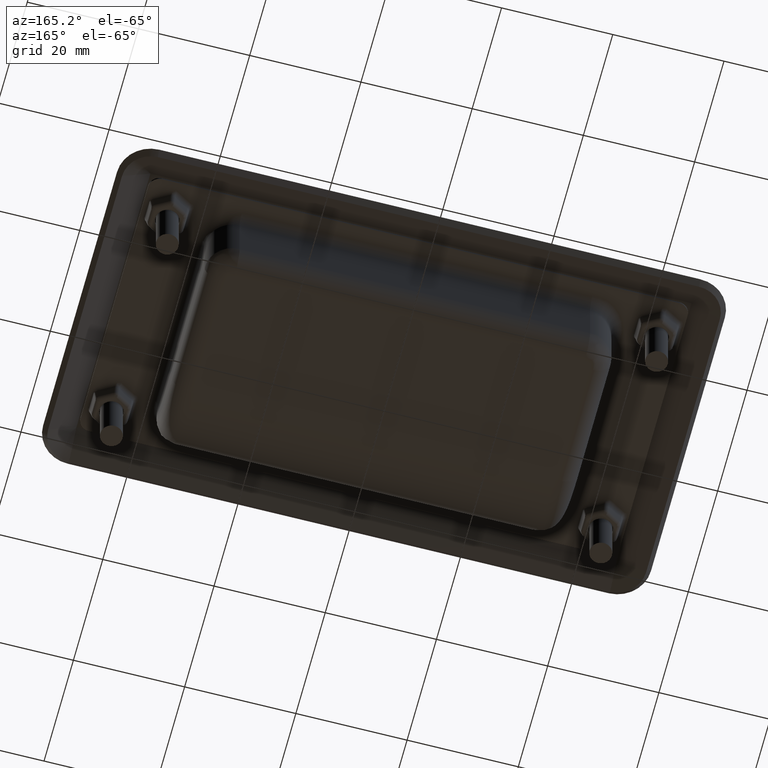
[diagram: clean part render]
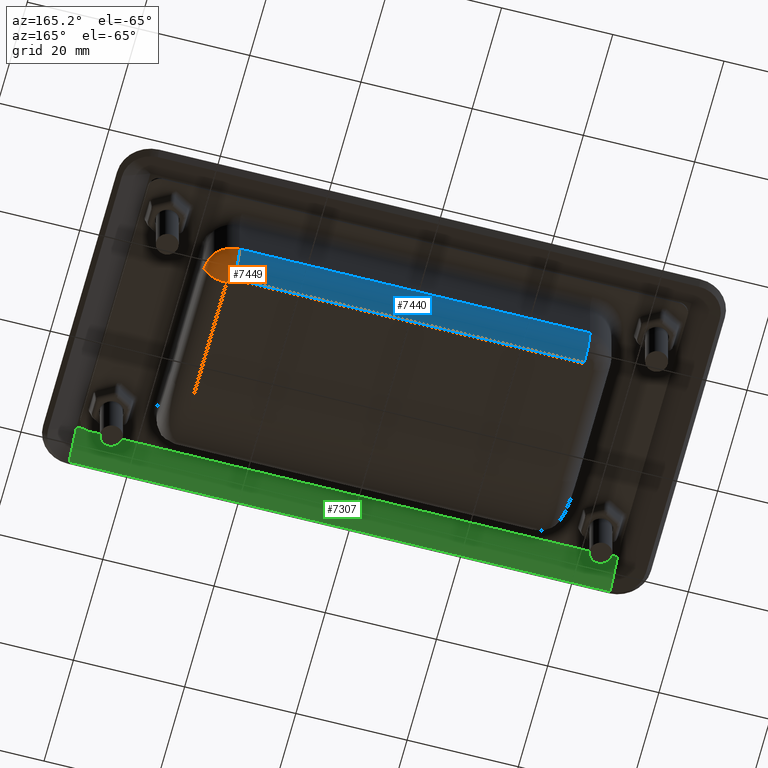
[diagram: same view with three faces highlighted in distinct colors, each labeled with its STEP entity id]
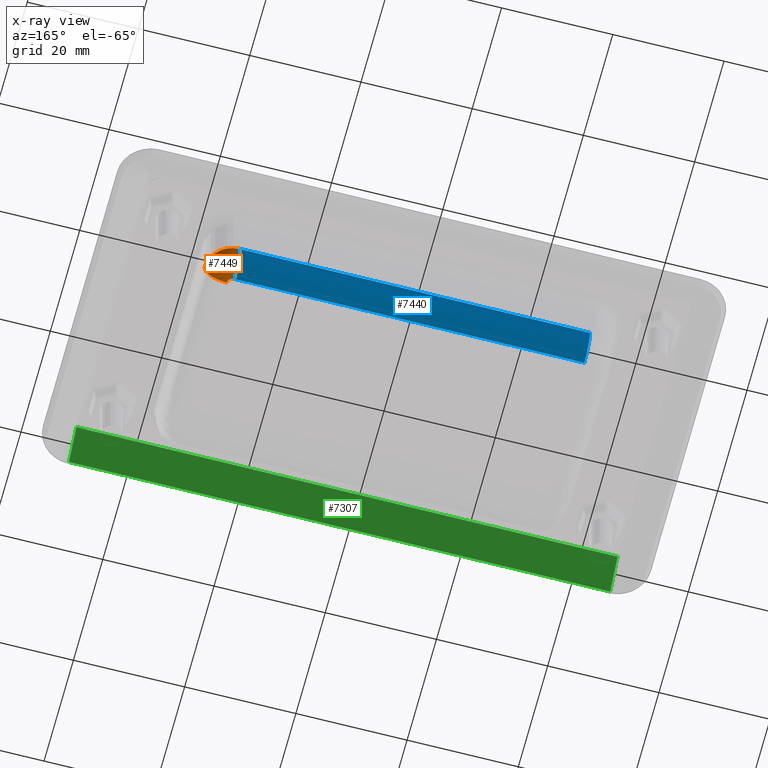
[diagram: x-ray of the same camera — body ghosted, the three highlighted faces saturated]
A machine part, auxiliary view with three faces highlighted in distinct colors.
The next image is the same camera in x-ray (body ghosted, the three faces saturated) — at least one of them is partly hidden behind the body in this view.
Their STEP definitions:

[orange] entity #7449 — the highlighted face is a freeform B-spline surface patch.
#63=(
BOUNDED_SURFACE()
B_SPLINE_SURFACE(2,2,((#14231,#14232,#14233),(#14234,#14235,#14236),(#14237,
#14238,#14239)),.UNSPECIFIED.,.F.,.F.,.F.)
B_SPLINE_SURFACE_WITH_KNOTS((3,3),(3,3),(-1.57079632679482,1.16749125796775E-13),
(-3.14159265358979,-1.57079632679489),.UNSPECIFIED.)
GEOMETRIC_REPRESENTATION_ITEM()
RATIONAL_B_SPLINE_SURFACE(((1.,0.707106781186546,1.),(0.707106781186537,
0.499999999999991,0.707106781186537),(1.,0.707106781186546,1.)))
REPRESENTATION_ITEM('')
SURFACE()
);
#1953=FACE_OUTER_BOUND('',#2461,.T.);
#2461=EDGE_LOOP('',(#5920,#5921,#5922,#5923));
#2879=CIRCLE('',#8090,5.);
#2884=CIRCLE('',#8097,4.);
#2897=CIRCLE('',#8115,4.);
#2898=CIRCLE('',#8116,0.999999999999999);
#3378=VERTEX_POINT('',#13762);
#3379=VERTEX_POINT('',#13766);
#3436=VERTEX_POINT('',#14027);
#3449=VERTEX_POINT('',#14227);
#4223=EDGE_CURVE('',#3378,#3379,#2879,.T.);
#4280=EDGE_CURVE('',#3378,#3436,#2884,.T.);
#4301=EDGE_CURVE('',#3449,#3379,#2897,.T.);
#4304=EDGE_CURVE('',#3449,#3436,#2898,.T.);
#5920=ORIENTED_EDGE('',*,*,#4280,.F.);
#5921=ORIENTED_EDGE('',*,*,#4223,.T.);
#5922=ORIENTED_EDGE('',*,*,#4301,.F.);
#5923=ORIENTED_EDGE('',*,*,#4304,.T.);
#7449=ADVANCED_FACE('',(#1953),#63,.F.);
#8090=AXIS2_PLACEMENT_3D('',#13768,#9389,#9390);
#8097=AXIS2_PLACEMENT_3D('',#14028,#9431,#9432);
#8115=AXIS2_PLACEMENT_3D('',#14228,#9471,#9472);
#8116=AXIS2_PLACEMENT_3D('',#14240,#9475,#9476);
#9389=DIRECTION('center_axis',(0.,3.7470027081099E-16,-1.));
#9390=DIRECTION('ref_axis',(-0.707106781186548,-0.707106781186547,-2.64953102402887E-16));
#9431=DIRECTION('center_axis',(1.,0.,0.));
#9432=DIRECTION('ref_axis',(0.,-1.,-3.7470027081099E-16));
#9471=DIRECTION('center_axis',(0.,1.,3.7470027081099E-16));
#9472=DIRECTION('ref_axis',(0.,3.7470027081099E-16,-1.));
#9475=DIRECTION('center_axis',(0.,-3.7470027081099E-16,1.));
#9476=DIRECTION('ref_axis',(-0.707106781186548,-0.707106781186547,-2.64953102402887E-16));
#13762=CARTESIAN_POINT('',(-31.5,-21.,-57.2));
#13766=CARTESIAN_POINT('',(-36.5,-16.,-57.2));
#13768=CARTESIAN_POINT('Origin',(-31.5,-16.,-57.2));
#14027=CARTESIAN_POINT('',(-31.5,-17.,-61.2));
#14028=CARTESIAN_POINT('Origin',(-31.5,-17.,-57.2));
#14227=CARTESIAN_POINT('',(-32.5,-16.,-61.2));
#14228=CARTESIAN_POINT('Origin',(-32.5,-16.,-57.2));
#14231=CARTESIAN_POINT('Ctrl Pts',(-32.5,-15.9999999999997,-61.2));
#14232=CARTESIAN_POINT('Ctrl Pts',(-32.5,-17.,-61.2000000000001));
#14233=CARTESIAN_POINT('Ctrl Pts',(-31.4999999999997,-17.,-61.2));
#14234=CARTESIAN_POINT('Ctrl Pts',(-36.5000000000002,-15.9999999999997,
-61.2));
#14235=CARTESIAN_POINT('Ctrl Pts',(-36.5000000000002,-21.0000000000002,
-61.2000000000004));
#14236=CARTESIAN_POINT('Ctrl Pts',(-31.4999999999997,-21.0000000000002,
-61.2));
#14237=CARTESIAN_POINT('Ctrl Pts',(-36.5,-16.,-57.1999999999998));
#14238=CARTESIAN_POINT('Ctrl Pts',(-36.5,-21.,-57.2000000000002));
#14239=CARTESIAN_POINT('Ctrl Pts',(-31.5,-21.,-57.1999999999998));
#14240=CARTESIAN_POINT('Origin',(-31.5,-16.,-61.2));

[blue] entity #7440 — the highlighted cylindrical surface (edge-blend (fillet) strip) has radius 4 mm, axis along (-1, 0, 0).
#464=LINE('',#13764,#998);
#494=LINE('',#14030,#1028);
#998=VECTOR('',#9385,63.);
#1028=VECTOR('',#9433,63.);
#1944=FACE_OUTER_BOUND('',#2452,.T.);
#2452=EDGE_LOOP('',(#5884,#5885,#5886,#5887));
#2884=CIRCLE('',#8097,4.);
#2885=CIRCLE('',#8098,4.);
#3377=VERTEX_POINT('',#13758);
#3378=VERTEX_POINT('',#13762);
#3436=VERTEX_POINT('',#14027);
#3437=VERTEX_POINT('',#14029);
#4221=EDGE_CURVE('',#3377,#3378,#464,.T.);
#4280=EDGE_CURVE('',#3378,#3436,#2884,.T.);
#4281=EDGE_CURVE('',#3436,#3437,#494,.T.);
#4282=EDGE_CURVE('',#3437,#3377,#2885,.T.);
#5884=ORIENTED_EDGE('',*,*,#4280,.T.);
#5885=ORIENTED_EDGE('',*,*,#4281,.T.);
#5886=ORIENTED_EDGE('',*,*,#4282,.T.);
#5887=ORIENTED_EDGE('',*,*,#4221,.T.);
#7106=CYLINDRICAL_SURFACE('',#8096,4.);
#7440=ADVANCED_FACE('',(#1944),#7106,.T.);
#8096=AXIS2_PLACEMENT_3D('',#14026,#9429,#9430);
#8097=AXIS2_PLACEMENT_3D('',#14028,#9431,#9432);
#8098=AXIS2_PLACEMENT_3D('',#14031,#9434,#9435);
#9385=DIRECTION('',(-1.,0.,0.));
#9429=DIRECTION('center_axis',(1.,0.,0.));
#9430=DIRECTION('ref_axis',(0.,-0.707106781186547,-0.707106781186548));
#9431=DIRECTION('center_axis',(1.,0.,0.));
#9432=DIRECTION('ref_axis',(0.,-1.,-3.7470027081099E-16));
#9433=DIRECTION('',(1.,0.,0.));
#9434=DIRECTION('center_axis',(-1.,0.,0.));
#9435=DIRECTION('ref_axis',(0.,3.7470027081099E-16,-1.));
#13758=CARTESIAN_POINT('',(31.5,-21.,-57.2));
#13762=CARTESIAN_POINT('',(-31.5,-21.,-57.2));
#13764=CARTESIAN_POINT('',(0.,-21.,-57.2));
#14026=CARTESIAN_POINT('Origin',(0.,-17.,-57.2));
#14027=CARTESIAN_POINT('',(-31.5,-17.,-61.2));
#14028=CARTESIAN_POINT('Origin',(-31.5,-17.,-57.2));
#14029=CARTESIAN_POINT('',(31.5,-17.,-61.2));
#14030=CARTESIAN_POINT('',(0.,-17.,-61.2));
#14031=CARTESIAN_POINT('Origin',(31.5,-17.,-57.2));

[green] entity #7307 — the highlighted planar face has unit normal (0, 0.5972, -0.8021).
#281=LINE('',#10881,#815);
#285=LINE('',#10889,#819);
#286=LINE('',#10891,#820);
#287=LINE('',#10892,#821);
#815=VECTOR('',#8706,6.36344725028052);
#819=VECTOR('',#8714,97.3);
#820=VECTOR('',#8717,6.36344725028052);
#821=VECTOR('',#8718,97.3);
#1614=PLANE('',#7843);
#1811=FACE_OUTER_BOUND('',#2300,.T.);
#2300=EDGE_LOOP('',(#5038,#5039,#5040,#5041));
#3063=VERTEX_POINT('',#10768);
#3080=VERTEX_POINT('',#10851);
#3085=VERTEX_POINT('',#10877);
#3087=VERTEX_POINT('',#10887);
#3801=EDGE_CURVE('',#3080,#3085,#281,.T.);
#3805=EDGE_CURVE('',#3087,#3085,#285,.T.);
#3806=EDGE_CURVE('',#3063,#3087,#286,.T.);
#3807=EDGE_CURVE('',#3063,#3080,#287,.T.);
#5038=ORIENTED_EDGE('',*,*,#3806,.T.);
#5039=ORIENTED_EDGE('',*,*,#3805,.T.);
#5040=ORIENTED_EDGE('',*,*,#3801,.F.);
#5041=ORIENTED_EDGE('',*,*,#3807,.F.);
#7307=ADVANCED_FACE('',(#1811),#1614,.T.);
#7843=AXIS2_PLACEMENT_3D('',#10890,#8715,#8716);
#8706=DIRECTION('',(-4.91157883191421E-17,0.802121695060787,-0.597160603450035));
#8714=DIRECTION('',(1.,-3.00501286654613E-17,0.));
#8715=DIRECTION('center_axis',(-2.72551470236087E-17,-0.597160603450035,
-0.802121695060787));
#8716=DIRECTION('ref_axis',(0.,0.802121695060787,-0.597160603450035));
#8717=DIRECTION('',(-4.91157883191421E-17,0.802121695060787,-0.597160603450035));
#8718=DIRECTION('',(1.,-3.00501286654613E-17,0.));
#10768=CARTESIAN_POINT('',(-48.65,25.15,-1.5));
#10851=CARTESIAN_POINT('',(48.65,25.15,-1.5));
#10877=CARTESIAN_POINT('',(48.65,30.2542590948249,-5.3));
#10881=CARTESIAN_POINT('',(48.65,25.15,-1.5));
#10887=CARTESIAN_POINT('',(-48.65,30.2542590948249,-5.3));
#10889=CARTESIAN_POINT('',(-48.65,30.2542590948249,-5.3));
#10890=CARTESIAN_POINT('Origin',(-48.65,25.15,-1.5));
#10891=CARTESIAN_POINT('',(-48.65,25.15,-1.5));
#10892=CARTESIAN_POINT('',(-48.65,25.15,-1.5));